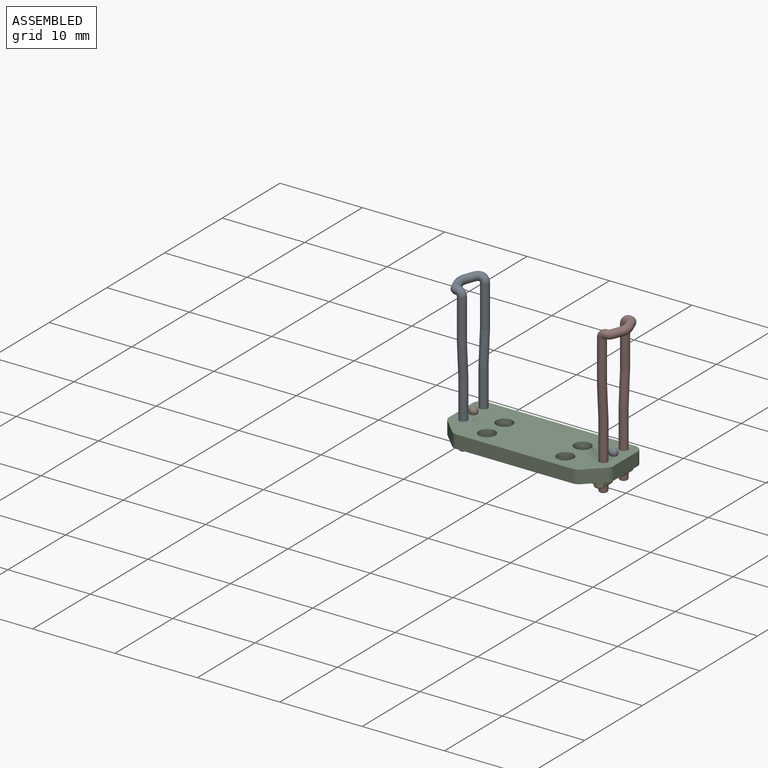
[diagram: assembled view]
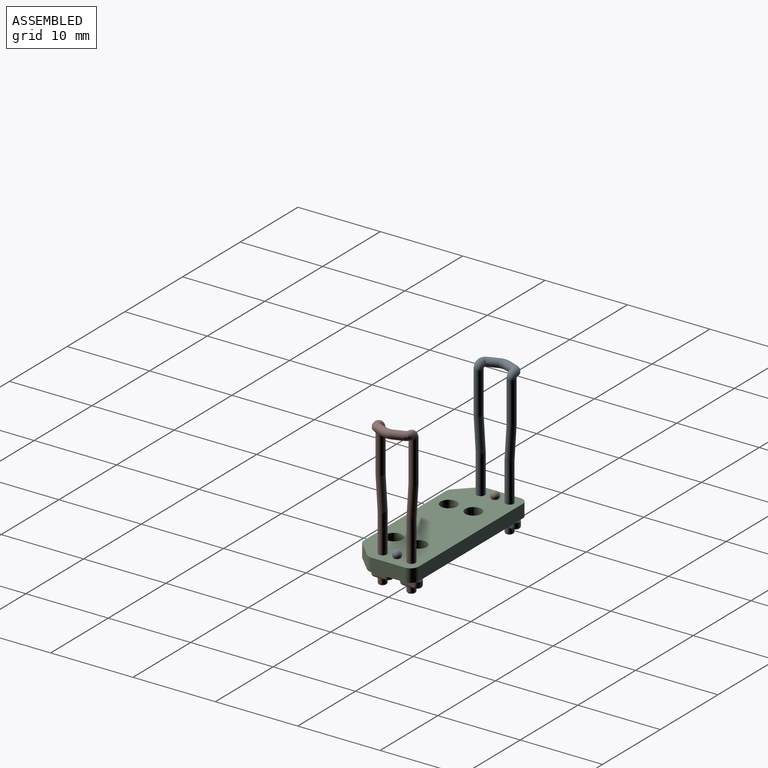
[diagram: assembled view, second angle]
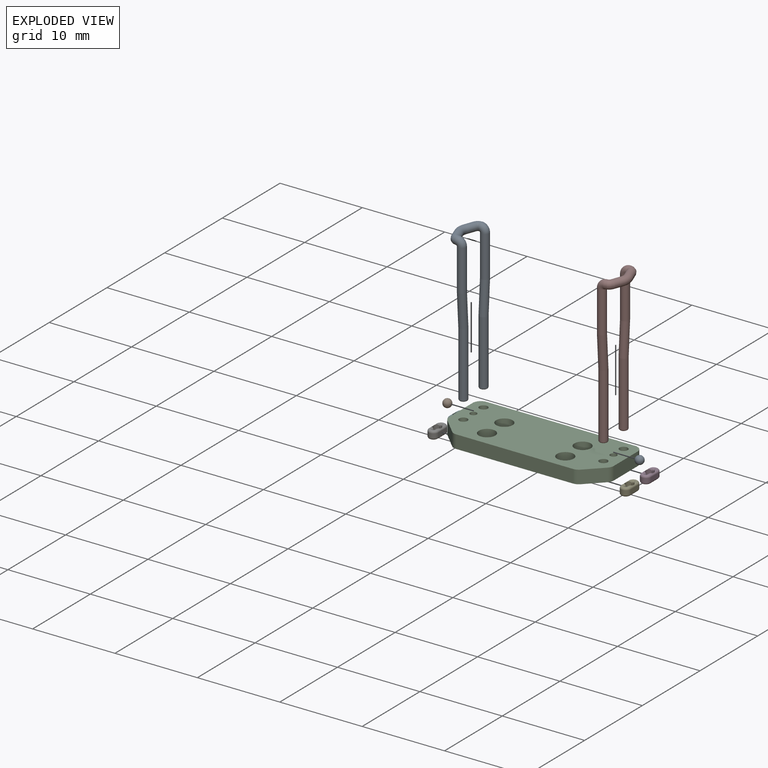
[diagram: exploded view]
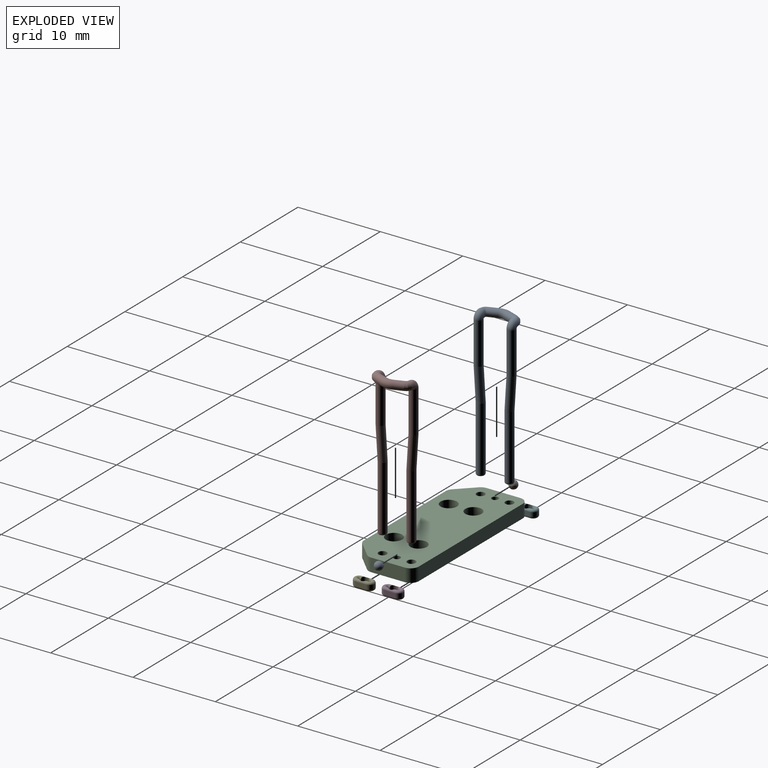
[diagram: exploded view, second angle]
FCSTD DOCUMENT  (FreeCAD 1.2R45225 (Git))
Label: Assembly_BallJointPlate
License: All rights reserved
objects: App::Link×9, App::FeaturePython×9, App::Point×1, Assembly::JointGroup×1, Assembly::AssemblyObject×1
EXTERNAL_REF file=BallJointPlate.FCStd obj=Body
EXTERNAL_REF file=JointBall.FCStd obj=Body
EXTERNAL_REF file=RubberBand.FCStd obj=Body
EXTERNAL_REF file=CrimpBead.FCStd obj=Body

FEATURE [App::Point] Origin001
  Role = Origin
FEATURE [App::Link] BallJointPlate
  LinkPlacement = pos=(0,0,-1.9) rot=(0,0,1;0rad)
  LinkedObject = -> <external BallJointPlate.FCStd>#Body
  Placement = pos=(0,0,-1.9) rot=(0,0,1;0rad)
FEATURE [App::FeaturePython] GroundedJoint  # Assembly grounded joint (typed FeaturePython)
  ObjectToGround = -> BallJointPlate
FEATURE [App::Link] Ball  label="Ball1"
  LinkPlacement = pos=(8.5,0,0) rot=(0,0,1;0rad)
  LinkedObject = -> <external JointBall.FCStd>#Body
  Placement = pos=(8.5,0,0) rot=(0,0,1;0rad)
FEATURE [App::Link] Ball001  label="Ball2"
  LinkPlacement = pos=(-8.5,0,0) rot=(0,0,1;0rad)
  LinkedObject = -> <external JointBall.FCStd>#Body
  Placement = pos=(-8.5,0,0) rot=(0,0,1;0rad)
FEATURE [App::FeaturePython] Joint  label="ball1"  # Assembly joint (typed FeaturePython)
  Angle = 0
  AngleMax = 0
  AngleMin = 0
  Detach1 = false
  Detach2 = false
  Distance = 0
  Distance2 = 0
  EnableAngleMax = false
  EnableAngleMin = false
  EnableLengthMax = false
  EnableLengthMin = false
  JointType = 0 (Fixed)
  LengthMax = 0
  LengthMin = 0
  Offset1 = pos=(8.5,0,1.9) rot=(0,0,1;0rad)
  Placement1 = pos=(8.5,0,1.9) rot=(0,0,1;0rad)
  Reference1 = -> BallJointPlate
  Reference2 = -> Ball
  Suppressed = false
FEATURE [App::FeaturePython] Joint001  label="ball2"  # Assembly joint (typed FeaturePython)
  Angle = 0
  AngleMax = 0
  AngleMin = 0
  Detach1 = false
  Detach2 = false
  Distance = 0
  Distance2 = 0
  EnableAngleMax = false
  EnableAngleMin = false
  EnableLengthMax = false
  EnableLengthMin = false
  JointType = 0 (Fixed)
  LengthMax = 0
  LengthMin = 0
  Offset1 = pos=(-8.5,0,1.9) rot=(0,0,1;0rad)
  Placement1 = pos=(-8.5,0,1.9) rot=(0,0,1;0rad)
  Reference1 = -> BallJointPlate
  Reference2 = -> Ball001
  Suppressed = false
FEATURE [App::Link] RubberBand  label="RubberBand1"
  LinkPlacement = pos=(8.5,0,13.35) rot=(-0.57735,0.57735,0.57735;4.18879rad)
  LinkedObject = -> <external RubberBand.FCStd>#Body
  Placement = pos=(8.5,0,13.35) rot=(-0.57735,0.57735,0.57735;4.18879rad)
FEATURE [App::Link] RubberBand001  label="RubberBand2"
  LinkPlacement = pos=(-8.5,0,13.35) rot=(0.57735,0.57735,0.57735;2.0944rad)
  LinkedObject = -> <external RubberBand.FCStd>#Body
  Placement = pos=(-8.5,0,13.35) rot=(0.57735,0.57735,0.57735;2.0944rad)
FEATURE [App::FeaturePython] Joint002  label="rubber_band1"  # Assembly joint (typed FeaturePython)
  Angle = 0
  AngleMax = 0
  AngleMin = 0
  Detach1 = false
  Detach2 = false
  Distance = 0
  Distance2 = 0
  EnableAngleMax = false
  EnableAngleMin = false
  EnableLengthMax = false
  EnableLengthMin = false
  JointType = 0 (Fixed)
  LengthMax = 0
  LengthMin = 0
  Offset2 = pos=(8.5,0,15.25) rot=(0.57735,-0.57735,-0.57735;2.0944rad)
  Placement2 = pos=(8.5,0,15.25) rot=(0.57735,-0.57735,-0.57735;2.0944rad)
  Reference1 = -> RubberBand
  Reference2 = -> BallJointPlate
  Suppressed = false
FEATURE [App::FeaturePython] Joint003  label="rubber_band2"  # Assembly joint (typed FeaturePython)
  Angle = 0
  AngleMax = 0
  AngleMin = 0
  Detach1 = false
  Detach2 = false
  Distance = 0
  Distance2 = 0
  EnableAngleMax = false
  EnableAngleMin = false
  EnableLengthMax = false
  EnableLengthMin = false
  JointType = 0 (Fixed)
  LengthMax = 0
  LengthMin = 0
  Offset2 = pos=(-8.5,0,15.25) rot=(0.57735,0.57735,0.57735;2.0944rad)
  Placement2 = pos=(-8.5,0,15.25) rot=(0.57735,0.57735,0.57735;2.0944rad)
  Reference1 = -> RubberBand001
  Reference2 = -> BallJointPlate
  Suppressed = false
FEATURE [App::Link] CrimpBead  label="CrimpBead1a"
  LinkPlacement = pos=(8.5,1.75,-2.4) rot=(0,0,1;1.5708rad)
  LinkedObject = -> <external CrimpBead.FCStd>#Body
  Placement = pos=(8.5,1.75,-2.4) rot=(0,0,1;1.5708rad)
FEATURE [App::Link] CrimpBead001  label="CrimpBead1b"
  LinkPlacement = pos=(8.5,-1.75,-2.4) rot=(0,0,1;1.5708rad)
  LinkedObject = -> <external CrimpBead.FCStd>#Body
  Placement = pos=(8.5,-1.75,-2.4) rot=(0,0,1;1.5708rad)
FEATURE [App::FeaturePython] Joint004  label="crimp_bead1a"  # Assembly joint (typed FeaturePython)
  Angle = 0
  AngleMax = 0
  AngleMin = 0
  Detach1 = false
  Detach2 = false
  Distance = 0
  Distance2 = 0
  EnableAngleMax = false
  EnableAngleMin = false
  EnableLengthMax = false
  EnableLengthMin = false
  JointType = 0 (Fixed)
  LengthMax = 0
  LengthMin = 0
  Offset2 = pos=(8.5,1.75,-0.5) rot=(0,0,1;1.5708rad)
  Placement2 = pos=(8.5,1.75,-0.5) rot=(0,0,1;1.5708rad)
  Reference1 = -> CrimpBead
  Reference2 = -> BallJointPlate
  Suppressed = false
FEATURE [App::FeaturePython] Joint005  label="crimp_bead1b"  # Assembly joint (typed FeaturePython)
  Angle = 0
  AngleMax = 0
  AngleMin = 0
  Detach1 = false
  Detach2 = false
  Distance = 0
  Distance2 = 0
  EnableAngleMax = false
  EnableAngleMin = false
  EnableLengthMax = false
  EnableLengthMin = false
  JointType = 0 (Fixed)
  LengthMax = 0
  LengthMin = 0
  Offset2 = pos=(8.5,-1.75,-0.5) rot=(0,0,1;1.5708rad)
  Placement2 = pos=(8.5,-1.75,-0.5) rot=(0,0,1;1.5708rad)
  Reference1 = -> CrimpBead001
  Reference2 = -> BallJointPlate
  Suppressed = false
FEATURE [App::Link] CrimpBead002  label="CrimpBead2a"
  LinkPlacement = pos=(-8.5,1.75,-2.4) rot=(0,0,-1;1.5708rad)
  LinkedObject = -> <external CrimpBead.FCStd>#Body
  Placement = pos=(-8.5,1.75,-2.4) rot=(0,0,-1;1.5708rad)
FEATURE [App::Link] CrimpBead003  label="CrimpBead2b"
  LinkPlacement = pos=(-8.5,-1.75,-2.4) rot=(0,0,-1;1.5708rad)
  LinkedObject = -> <external CrimpBead.FCStd>#Body
  Placement = pos=(-8.5,-1.75,-2.4) rot=(0,0,-1;1.5708rad)
FEATURE [App::FeaturePython] Joint006  label="crimp_bead2b"  # Assembly joint (typed FeaturePython)
  Angle = 0
  AngleMax = 0
  AngleMin = 0
  Detach1 = false
  Detach2 = false
  Distance = 0
  Distance2 = 0
  EnableAngleMax = false
  EnableAngleMin = false
  EnableLengthMax = false
  EnableLengthMin = false
  JointType = 0 (Fixed)
  LengthMax = 0
  LengthMin = 0
  Offset2 = pos=(-8.5,-1.75,-0.5) rot=(0,0,-1;1.5708rad)
  Placement2 = pos=(-8.5,-1.75,-0.5) rot=(0,0,-1;1.5708rad)
  Reference1 = -> CrimpBead003
  Reference2 = -> BallJointPlate
  Suppressed = false
FEATURE [App::FeaturePython] Joint007  label="Fixed009"  # Assembly joint (typed FeaturePython)
  Angle = 0
  AngleMax = 0
  AngleMin = 0
  Detach1 = false
  Detach2 = false
  Distance = 0
  Distance2 = 0
  EnableAngleMax = false
  EnableAngleMin = false
  EnableLengthMax = false
  EnableLengthMin = false
  JointType = 0 (Fixed)
  LengthMax = 0
  LengthMin = 0
  Offset2 = pos=(-8.5,1.75,-0.5) rot=(0,0,-1;1.5708rad)
  Placement2 = pos=(-8.5,1.75,-0.5) rot=(0,0,-1;1.5708rad)
  Reference1 = -> CrimpBead002
  Reference2 = -> BallJointPlate
  Suppressed = false
FEATURE [Assembly::JointGroup] Joints
  Group = -> [GroundedJoint,Joint,Joint001,Joint002,Joint003,Joint004,Joint005,Joint006,Joint007]
FEATURE [Assembly::AssemblyObject] Assembly  label="BallJointPlateAsm"
  Group = -> [Joints,BallJointPlate,GroundedJoint,Ball,Ball001,Joint,Joint001,RubberBand,RubberBand001,Joint002,Joint003,CrimpBead,CrimpBead001,Joint004,Joint005,CrimpBead002,CrimpBead003,Joint006,Joint007]
  Origin = -> Origin
  Type = Assembly

RESOLVED EXTERNAL PARTS (link-assembly join: the EXTERNAL_REF files above that resolve inside this repo's crawl, each included once):
---- part BallJointPlate.FCStd = doc fcstd_ada5d9a8ce5c ----
FCSTD DOCUMENT  (FreeCAD 1.2R45145 (Git))
Label: BallJointPlate
License: All rights reserved
LicenseURL: https://en.wikipedia.org/wiki/All_rights_reserved
objects: Sketcher::SketchObject×3, PartDesign::Pocket×2, App::Point×1, PartDesign::Pad×1, PartDesign::Chamfer×1, PartDesign::Fillet×1, PartDesign::Mirrored×1, PartDesign::Body×1, Part::Part2DObjectPython×1
note: 25 computed .brp shape members not serialized (recipe doc carries the construction recipe); baked Part::Feature solids carry a one-line shape summary decoded from their .brp

FEATURE [App::Point] Origin001
  Role = Origin
FEATURE [Sketcher::SketchObject] Sketch
  ArcFitTolerance = 1e-06
  AttachmentSupport = -> [Origin]
  ExternalTypes = [0]
  FullyConstrained = true
  MakeInternals = false
  MapMode = 5
  sketch-geometry (5):
    g0: LineSegment StartX=-10 StartY=-5 StartZ=0 EndX=10 EndY=-5 EndZ=0
    g1: LineSegment StartX=10 StartY=-5 StartZ=0 EndX=10 EndY=3 EndZ=0
    g2: LineSegment StartX=10 StartY=3 StartZ=0 EndX=-10 EndY=3 EndZ=0
    g3: LineSegment StartX=-10 StartY=3 StartZ=0 EndX=-10 EndY=-5 EndZ=0
    g4: GeomPoint [constr] X=0 Y=-1 Z=0
  constraints (13):
    c: Coincident(g0,g1)
    c: Coincident(g1,g2)
    c: Coincident(g2,g3)
    c: Coincident(g3,g0)
    c: Horizontal(g0)
    c: Horizontal(g2)
    c: Vertical(g1)
    c: Vertical(g3)
    c: Symmetric(g2,g0,g4)
    c: PointOnObject(g4,g-2)
    c: DistanceX(g2,g2) = 20
    c: DistanceY(g1,g1) = 8
    c: Distance(g-1,g2) = 3
FEATURE [PartDesign::Pad] Pad
  Direction = (0,0,1)
  Length = 1.6
  Length2 = 10
  Profile = -> Sketch
  ReferenceAxis = -> Sketch [N_Axis]
  Refine = true
  SideType = 0
  Suppressed = false
  Type = 0
  Type2 = 0
FEATURE [Sketcher::SketchObject] Sketch001
  ArcFitTolerance = 1e-06
  AttachmentSupport = -> [Pad]
  ExternalTypes = [0]
  FullyConstrained = false
  MakeInternals = false
  MapMode = 5
  Placement = pos=(0,0,1.6) rot=(0,0,1;0rad)
  sketch-geometry (4):
    g0: Circle CenterX=-8.5 CenterY=0 CenterZ=0 NormalX=0 NormalY=0 NormalZ=1 AngleXU=0 Radius=0.4
    g1: Circle CenterX=-8.5 CenterY=1.75 CenterZ=0 NormalX=0 NormalY=0 NormalZ=1 AngleXU=0 Radius=0.5
    g2: Circle CenterX=-8.5 CenterY=-1.75 CenterZ=0 NormalX=0 NormalY=0 NormalZ=1 AngleXU=0 Radius=0.5
    g3: LineSegment [constr] StartX=-9 StartY=4.76878 StartZ=0 EndX=-9 EndY=-7.0204 EndZ=0
  constraints (10):
    c: PointOnObject(g0,g-1)
    c: Diameter(g0) = 0.8
    c: DistanceX(g0,g-1) = 8.5
    c: Equal(g1,g2)
    c: Symmetric(g1,g2,g0)
    c: Vertical(g0,g1)
    c: Diameter(g1) = 1
    c: DistanceY(g0,g1) = 1.75
    c: Vertical(g3)
    c: Distance(g-2,g3) = 9
FEATURE [PartDesign::Pocket] Pocket
  BaseFeature = -> Pad
  Direction = (0,0,-1)
  Length = 5
  Length2 = 5
  Profile = -> Sketch001
  ReferenceAxis = -> Sketch001 [N_Axis]
  Refine = true
  SideType = 0
  Suppressed = false
  Type = 0
  Type2 = 0
FEATURE [Sketcher::SketchObject] Sketch002
  ArcFitTolerance = 1e-06
  AttachmentSupport = -> [Pocket]
  ExternalGeometry = -> [Pocket]
  ExternalTypes = [0]
  FullyConstrained = true
  MakeInternals = false
  MapMode = 5
  Placement = pos=(0,0,1.6) rot=(0,0,1;0rad)
  sketch-geometry (3):
    g0: Circle CenterX=-4.75 CenterY=-3 CenterZ=0 NormalX=0 NormalY=0 NormalZ=1 AngleXU=0 Radius=1
    g1: Circle CenterX=-4.75 CenterY=0 CenterZ=0 NormalX=0 NormalY=0 NormalZ=1 AngleXU=0 Radius=1
    g2: Circle [constr] CenterX=-4.75 CenterY=0 CenterZ=0 NormalX=0 NormalY=0 NormalZ=1 AngleXU=0 Radius=1.75
  constraints (8):
    c: Diameter(g0) = 2
    c: Diameter(g1) = 2
    c: Coincident(g2,g1)
    c: Diameter(g2) = 3.5
    c: DistanceX(g1,g-1) = 4.75
    c: PointOnObject(g1,g-1)
    c: Distance(g0,g-1) = 3
    c: DistanceX(g0,g-1) = 4.75
FEATURE [PartDesign::Pocket] Pocket001
  BaseFeature = -> Pocket
  Direction = (0,0,-1)
  Length = 5
  Length2 = 5
  Profile = -> Sketch002
  ReferenceAxis = -> Sketch002 [N_Axis]
  Refine = true
  SideType = 0
  Suppressed = false
  Type = 0
  Type2 = 0
FEATURE [PartDesign::Chamfer] Chamfer
  Angle = 45
  Base = -> Pocket001 [Edge1]
  BaseFeature = -> Pocket001
  ChamferType = 0
  FlipDirection = false
  Refine = true
  Size = 2.5
  Size2 = 1
  SupportTransform = false
  Suppressed = false
  UseAllEdges = false
FEATURE [PartDesign::Fillet] Fillet
  Base = -> Chamfer [Edge25,Edge14,Edge2]
  BaseFeature = -> Chamfer
  Radius = 1
  Refine = true
  SupportTransform = false
  Suppressed = false
  UseAllEdges = false
FEATURE [PartDesign::Mirrored] Mirrored
  BaseFeature = -> Fillet
  MirrorPlane = -> YZ_Plane
  Originals = -> [Pocket,Pocket001,Chamfer,Fillet]
  Refine = true
  Suppressed = false
  TransformMode = 0
FEATURE [PartDesign::Body] Body  label="BallJointPlate"
  AllowCompound = false
  Group = -> [Sketch,Pad,Sketch001,Pocket,Sketch002,Pocket001,Chamfer,Fillet,Mirrored]
  Origin = -> Origin
  Tip = -> Mirrored
FEATURE [Part::Part2DObjectPython] Shape2DView  label="Contour"  # Draft 2D object (typed FeaturePython)
  AutoUpdate = true
  Base = -> Mirrored
  Clip = false
  FaceNumbers = [3]
  FuseArch = false
  HiddenLines = false
  InPlace = true
  OnlySolids = false
  Projection = (0,0,1)
  ProjectionMode = 0
  SegmentLength = 0.05
  Tessellation = false
  VisibleOnly = false
---- part CrimpBead.FCStd = doc fcstd_ecca767a7ed3 ----
FCSTD DOCUMENT  (FreeCAD 1.2R45225 (Git))
Label: CrimpBead
License: All rights reserved
objects: Sketcher::SketchObject×3, PartDesign::Pocket×2, App::Point×1, PartDesign::Pad×1, PartDesign::Fillet×1, PartDesign::Body×1
note: 19 computed .brp shape members not serialized (recipe doc carries the construction recipe); baked Part::Feature solids carry a one-line shape summary decoded from their .brp

FEATURE [App::Point] Origin001
  Role = Origin
FEATURE [Sketcher::SketchObject] Sketch
  ArcFitTolerance = 1e-06
  AttachmentSupport = -> [Origin]
  ExternalTypes = [0]
  FullyConstrained = true
  MakeInternals = false
  MapMode = 5
  sketch-geometry (6):
    g0: ArcOfCircle CenterX=-0.65 CenterY=0 CenterZ=0 NormalX=0 NormalY=0 NormalZ=1 AngleXU=0 Radius=0.6 StartAngle=1.5708 EndAngle=4.71239
    g1: ArcOfCircle CenterX=0.65 CenterY=0 CenterZ=0 NormalX=0 NormalY=0 NormalZ=1 AngleXU=0 Radius=0.6 StartAngle=4.71239 EndAngle=7.85398
    g2: LineSegment StartX=-0.65 StartY=0.6 StartZ=0 EndX=0.65 EndY=0.6 EndZ=0
    g3: LineSegment StartX=-0.65 StartY=-0.6 StartZ=0 EndX=0.65 EndY=-0.6 EndZ=0
    g4: GeomPoint X=-1.25 Y=0 Z=0
    g5: GeomPoint X=1.25 Y=0 Z=0
  constraints (13):
    c: Tangent(g0,g2) = 1.5708
    c: Tangent(g0,g3) = -1.5708
    c: Tangent(g1,g2) = 1.5708
    c: Tangent(g1,g3) = -1.5708
    c: Equal(g0,g1)
    c: PointOnObject(g0,g-1)
    c: Symmetric(g0,g1,g-2)
    c: Distance(g3,g2) = 1.2
    c: PointOnObject(g4,g0)
    c: PointOnObject(g5,g1)
    c: PointOnObject(g5,g-1)
    c: PointOnObject(g4,g-1)
    c: DistanceX(g4,g5) = 2.5
FEATURE [PartDesign::Pad] Pad
  Direction = (0,0,1)
  Length = 1
  Length2 = 10
  Profile = -> Sketch
  ReferenceAxis = -> Sketch [N_Axis]
  Refine = true
  SideType = 2
  Suppressed = false
  Type = 0
  Type2 = 0
FEATURE [Sketcher::SketchObject] Sketch001
  ArcFitTolerance = 1e-06
  AttachmentSupport = -> [Pad]
  ExternalGeometry = -> [Pad]
  ExternalTypes = [0,0]
  FullyConstrained = true
  MakeInternals = false
  MapMode = 5
  Placement = pos=(0,0,0.5) rot=(0,0,1;0rad)
  sketch-geometry (4):
    g0: ArcOfCircle CenterX=-0.65 CenterY=0 CenterZ=0 NormalX=0 NormalY=0 NormalZ=1 AngleXU=0 Radius=0.1 StartAngle=1.5708 EndAngle=4.71239
    g1: ArcOfCircle CenterX=0.65 CenterY=0 CenterZ=0 NormalX=0 NormalY=0 NormalZ=1 AngleXU=0 Radius=0.1 StartAngle=4.71239 EndAngle=7.85398
    g2: LineSegment StartX=-0.65 StartY=0.1 StartZ=0 EndX=0.65 EndY=0.1 EndZ=0
    g3: LineSegment StartX=-0.65 StartY=-0.1 StartZ=0 EndX=0.65 EndY=-0.1 EndZ=0
  constraints (8):
    c: Tangent(g0,g2) = 1.5708
    c: Tangent(g0,g3) = -1.5708
    c: Tangent(g1,g2) = 1.5708
    c: Tangent(g1,g3) = -1.5708
    c: Equal(g0,g1)
    c: Coincident(g0,g-3)
    c: Coincident(g1,g-4)
    c: Radius(g1) = 0.1
FEATURE [PartDesign::Pocket] Pocket
  BaseFeature = -> Pad
  Direction = (0,0,-1)
  Length = 5
  Length2 = 5
  Profile = -> Sketch001
  ReferenceAxis = -> Sketch001 [N_Axis]
  Refine = true
  SideType = 0
  Suppressed = false
  Type = 0
  Type2 = 0
FEATURE [PartDesign::Fillet] Fillet
  Base = -> Pocket [Edge10,Edge18,Edge9,Edge13]
  BaseFeature = -> Pocket
  Radius = 0.2499
  Refine = true
  SupportTransform = false
  Suppressed = false
  UseAllEdges = false
FEATURE [Sketcher::SketchObject] Sketch002
  ArcFitTolerance = 1e-06
  AttachmentSupport = -> [Origin]
  ExternalTypes = [0]
  FullyConstrained = true
  MakeInternals = false
  MapMode = 5
  sketch-geometry (1):
    g0: Circle CenterX=0 CenterY=0 CenterZ=0 NormalX=0 NormalY=0 NormalZ=1 AngleXU=0 Radius=0.5
  constraints (2):
    c: Coincident(g0,g-1)
    c: Diameter(g0) = 1
FEATURE [PartDesign::Pocket] Pocket001
  BaseFeature = -> Fillet
  Direction = (0,0,-1)
  Length = 5
  Length2 = 5
  Profile = -> Sketch002
  ReferenceAxis = -> Sketch002 [N_Axis]
  Refine = true
  SideType = 2
  Suppressed = false
  Type = 0
  Type2 = 0
FEATURE [PartDesign::Body] Body  label="CrimpBead"
  AllowCompound = false
  Group = -> [Sketch,Pad,Sketch001,Pocket,Fillet,Sketch002,Pocket001]
  Origin = -> Origin
  Tip = -> Pocket001
---- part JointBall.FCStd = doc fcstd_8ecf19655962 ----
FCSTD DOCUMENT  (FreeCAD 1.2R45145 (Git))
Label: JointBall
License: All rights reserved
LicenseURL: https://en.wikipedia.org/wiki/All_rights_reserved
objects: App::Point×1, Sketcher::SketchObject×1, PartDesign::Revolution×1, PartDesign::Body×1
note: 6 computed .brp shape members not serialized (recipe doc carries the construction recipe); baked Part::Feature solids carry a one-line shape summary decoded from their .brp

FEATURE [App::Point] Origin001
  Role = Origin
FEATURE [Sketcher::SketchObject] Sketch
  ArcFitTolerance = 1e-06
  AttachmentSupport = -> [Origin]
  ExternalTypes = [0]
  FullyConstrained = true
  MakeInternals = false
  MapMode = 5
  sketch-geometry (2):
    g0: ArcOfCircle CenterX=0 CenterY=0 CenterZ=0 NormalX=0 NormalY=0 NormalZ=1 AngleXU=0 Radius=0.5 StartAngle=0 EndAngle=3.14159
    g1: LineSegment StartX=-0.5 StartY=0 StartZ=0 EndX=0.5 EndY=0 EndZ=0
  constraints (6):
    c: Coincident(g1,g0)
    c: Coincident(g1,g0)
    c: Horizontal(g1)
    c: Radius(g0) = 0.5
    c: PointOnObject(g0,g-1)
    c: Coincident(g0,g-1)
FEATURE [PartDesign::Revolution] Revolution
  Angle = 360
  Angle2 = 60
  Axis = (1,0,0)
  Base = (0,0,0)
  FuseOrder = 0
  Profile = -> Sketch
  ReferenceAxis = -> Sketch [H_Axis]
  Refine = true
  Suppressed = false
  Type = 0
FEATURE [PartDesign::Body] Body  label="Ball"
  AllowCompound = false
  Group = -> [Sketch,Revolution]
  Origin = -> Origin
  Tip = -> Revolution
---- part RubberBand.FCStd = doc fcstd_a4f329bcff9c ----
FCSTD DOCUMENT  (FreeCAD 1.2R45225 (Git))
Label: RubberBand
License: All rights reserved
objects: Sketcher::SketchObject×4, PartDesign::AdditivePipe×2, App::Point×1, Part::DatumLine×1, PartDesign::Revolution×1, Part::DatumPlane×1, PartDesign::Mirrored×1, PartDesign::Fillet×1, PartDesign::Body×1
note: 23 computed .brp shape members not serialized (recipe doc carries the construction recipe); baked Part::Feature solids carry a one-line shape summary decoded from their .brp

FEATURE [App::Point] Origin001
  Role = Origin
FEATURE [Sketcher::SketchObject] Sketch
  ArcFitTolerance = 1e-06
  AttachmentSupport = -> [Origin]
  ExternalTypes = [0]
  FullyConstrained = true
  MakeInternals = false
  MapMode = 5
  Placement = pos=(0,0,0) rot=(1,0,0;1.5708rad)
  sketch-geometry (1):
    g0: Circle CenterX=-2 CenterY=0 CenterZ=0 NormalX=0 NormalY=0 NormalZ=1 AngleXU=0 Radius=0.5
  constraints (3):
    c: PointOnObject(g0,g-1)
    c: Diameter(g0) = 1
    c: DistanceX(g0,g-1) = 2
FEATURE [Sketcher::SketchObject] Sketch001
  ArcFitTolerance = 1e-06
  AttachmentSupport = -> [Origin]
  ExternalTypes = [0]
  FullyConstrained = true
  MakeInternals = false
  MapMode = 5
  sketch-geometry (3):
    g0: LineSegment StartX=-1.75 StartY=-17 StartZ=0 EndX=-1.75 EndY=-9 EndZ=0
    g1: LineSegment StartX=-1.75 StartY=-9 StartZ=0 EndX=-2 EndY=-5 EndZ=0
    g2: LineSegment StartX=-2 StartY=-5 StartZ=0 EndX=-2 EndY=0 EndZ=0
  constraints (10):
    c: Vertical(g0)
    c: Distance(g-2,g0) = 1.75
    c: Coincident(g1,g0)
    c: Coincident(g2,g1)
    c: Vertical(g2)
    c: Distance(g-2,g2) = 2
    c: DistanceY(g0,g1) = 4
    c: DistanceY(g2,g2) = 5
    c: PointOnObject(g2,g-1)
    c: DistanceY(g0,g-1) = 17
FEATURE [PartDesign::AdditivePipe] AdditivePipe
  AuxiliaryCurvilinear = true
  AuxiliarySpineTangent = false
  Binormal = (0,0,0)
  Mode = 0
  Profile = -> Sketch
  Refine = true
  Spine = -> Sketch001
  SpineTangent = false
  Suppressed = false
  Transformation = 0
  Transition = 0
FEATURE [Part::DatumLine] DatumLine
  AttacherType = Attacher::AttachEngineLine
  AttachmentOffset = pos=(0,-0.51,0) rot=(0,0,1;0rad)
  AttachmentSupport = -> [Origin]
  MapMode = 29
  Placement = pos=(0,0,-0.51) rot=(0.57735,0.57735,0.57735;2.0944rad)
FEATURE [PartDesign::Revolution] Revolution
  Angle = 90
  Angle2 = 0
  Axis = (1,0,0)
  Base = (0,0,-0.51)
  BaseFeature = -> AdditivePipe
  FuseOrder = 0
  Profile = -> AdditivePipe [Edge7]
  ReferenceAxis = -> DatumLine
  Refine = true
  Reversed = true
  Suppressed = false
  Type = 0
FEATURE [Part::DatumPlane] DatumPlane
  AttachmentOffset = pos=(0,0,-0.51) rot=(0,0,1;0rad)
  AttachmentSupport = -> [Origin]
  MapMode = 5
  Placement = pos=(0,0.51,-1e-16) rot=(1,0,0;1.5708rad)
FEATURE [Sketcher::SketchObject] Sketch002
  ArcFitTolerance = 1e-06
  AttachmentSupport = -> [DatumPlane]
  ExternalGeometry = -> [Revolution]
  ExternalTypes = [0]
  FullyConstrained = true
  MakeInternals = false
  MapMode = 5
  Placement = pos=(0,0.51,-1e-16) rot=(1,0,0;1.5708rad)
  sketch-geometry (4):
    g0: Circle [constr] CenterX=0 CenterY=0 CenterZ=0 NormalX=0 NormalY=0 NormalZ=1 AngleXU=0 Radius=1
    g1: ArcOfCircle CenterX=-1.49 CenterY=-0.51 CenterZ=0 NormalX=0 NormalY=0 NormalZ=1 AngleXU=0 Radius=0.51 StartAngle=3.14159 EndAngle=4.3542
    g2: LineSegment StartX=-1.6688 StartY=-0.987631 StartZ=0 EndX=-0.529381 EndY=-1.41416 EndZ=0
    g3: ArcOfCircle CenterX=0 CenterY=0 CenterZ=0 NormalX=0 NormalY=0 NormalZ=1 AngleXU=0 Radius=1.51 StartAngle=4.3542 EndAngle=4.71239
  constraints (10):
    c: Coincident(g0,g-1)
    c: Diameter(g0) = 2
    c: Tangent(g2,g1) = -1.5708
    c: PointOnObject(g3,g-2)
    c: Tangent(g3,g2) = -1.5708
    c: Radius(g1) = 0.51
    c: Symmetric(g-3,g-3,g1)
    c: Perpendicular(g1,g-3)
    c: Coincident(g3,g0)
    c: DistanceY(g3,g-1) = 1.51
FEATURE [Sketcher::SketchObject] Sketch003
  ArcFitTolerance = 1e-06
  AttachmentSupport = -> [Revolution]
  ExternalGeometry = -> [Revolution]
  ExternalTypes = [0]
  FullyConstrained = true
  MakeInternals = false
  MapMode = 5
  Placement = pos=(0,1e-16,-0.51) rot=(1,0,0;3.14159rad)
FEATURE [PartDesign::AdditivePipe] AdditivePipe001
  AuxiliaryCurvilinear = true
  AuxiliarySpineTangent = false
  BaseFeature = -> Revolution
  Binormal = (0,0,0)
  Mode = 0
  Profile = -> Sketch003
  Refine = true
  Spine = -> Sketch002
  SpineTangent = false
  Suppressed = false
  Transformation = 0
  Transition = 0
FEATURE [PartDesign::Mirrored] Mirrored
  BaseFeature = -> AdditivePipe001
  MirrorPlane = -> YZ_Plane
  Refine = true
  Suppressed = false
  TransformMode = 1
FEATURE [PartDesign::Fillet] Fillet
  Base = -> Mirrored [Edge29,Edge1]
  BaseFeature = -> Mirrored
  Radius = 0.2
  Refine = true
  SupportTransform = false
  Suppressed = false
  UseAllEdges = false
FEATURE [PartDesign::Body] Body  label="RubberBand"
  AllowCompound = false
  Group = -> [Sketch,Sketch001,AdditivePipe,DatumLine,Revolution,DatumPlane,Sketch002,Sketch003,AdditivePipe001,Mirrored,Fillet]
  Origin = -> Origin
  Tip = -> Fillet
